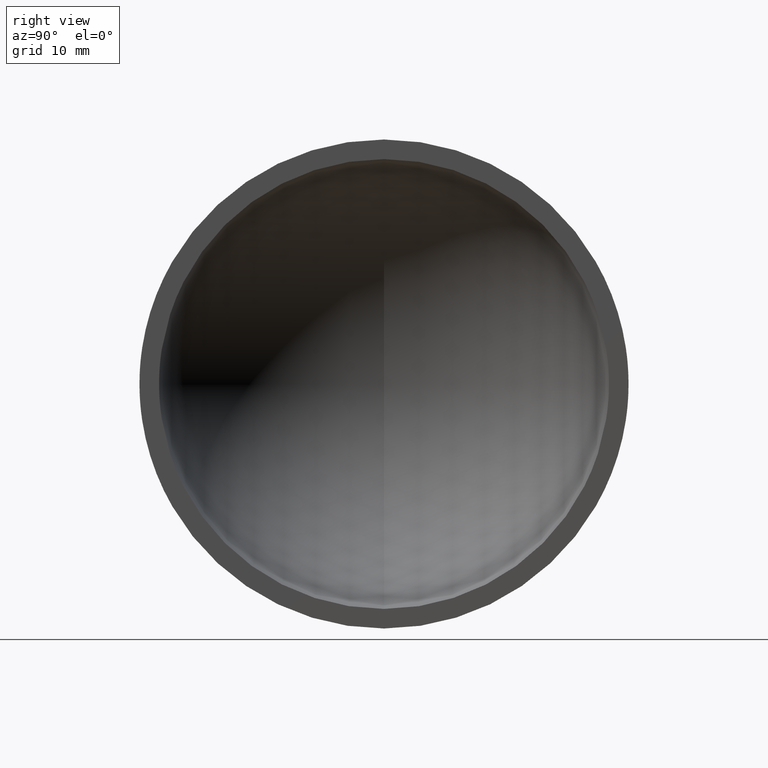
[diagram: clean part render]
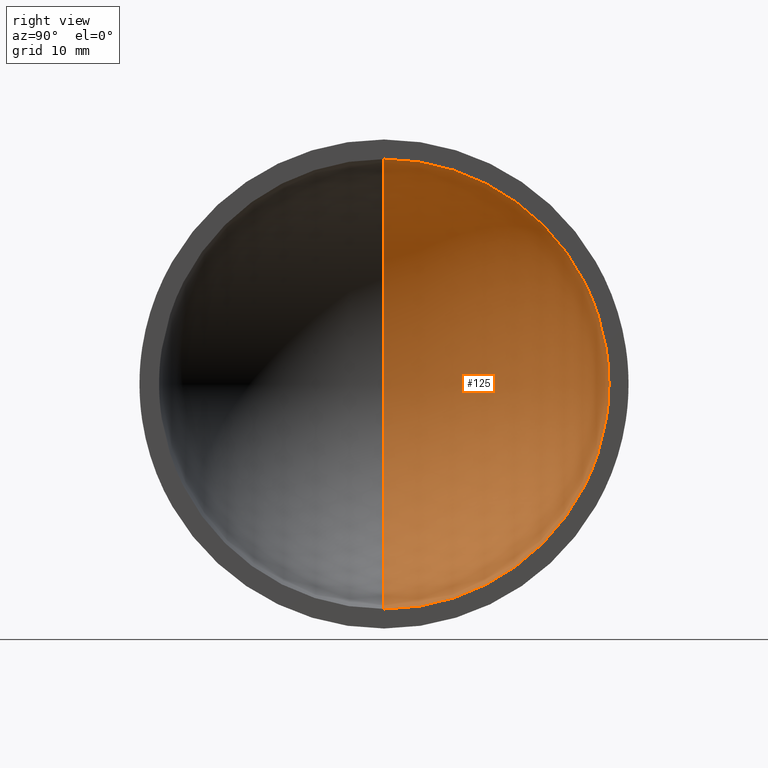
[diagram: same view with one face highlighted and labeled with its STEP entity id]
A machine part, right view. The second image highlights one B-rep face of the part: STEP entity #125.
In plain terms, the highlighted spherical surface has radius 34.5 mm.
Its self-contained STEP definition (entity closure, byte-faithful):
#6 = DIRECTION ( 'NONE',  ( 0.0000000000000000000, -1.000000000000000000, 1.224646799147353200E-016 ) ) ;
#8 = CARTESIAN_POINT ( 'NONE',  ( 0.0000000000000000000, 0.0000000000000000000, 0.0000000000000000000 ) ) ;
#13 = FACE_OUTER_BOUND ( 'NONE', #88, .T. ) ;
#20 = DIRECTION ( 'NONE',  ( 0.0000000000000000000, -1.224646799147353200E-016, -1.000000000000000000 ) ) ;
#29 = VERTEX_POINT ( 'NONE', #121 ) ;
#37 = DIRECTION ( 'NONE',  ( 0.0000000000000000000, 0.0000000000000000000, -1.000000000000000000 ) ) ;
#40 = EDGE_CURVE ( 'NONE', #29, #120, #137, .T. ) ;
#41 = ORIENTED_EDGE ( 'NONE', *, *, #40, .F. ) ;
#45 = AXIS2_PLACEMENT_3D ( 'NONE', #148, #49, #64 ) ;
#49 = DIRECTION ( 'NONE',  ( 0.0000000000000000000, -1.000000000000000000, 0.0000000000000000000 ) ) ;
#52 = DIRECTION ( 'NONE',  ( 0.0000000000000000000, 0.0000000000000000000, 1.000000000000000000 ) ) ;
#55 = VERTEX_POINT ( 'NONE', #157 ) ;
#58 = CIRCLE ( 'NONE', #66, 34.48550420104076200 ) ;
#64 = DIRECTION ( 'NONE',  ( 0.0000000000000000000, 0.0000000000000000000, 1.000000000000000000 ) ) ;
#66 = AXIS2_PLACEMENT_3D ( 'NONE', #139, #106, #37 ) ;
#76 = DIRECTION ( 'NONE',  ( 0.0000000000000000000, 1.000000000000000000, 0.0000000000000000000 ) ) ;
#88 = EDGE_LOOP ( 'NONE', ( #41, #147, #169 ) ) ;
#106 = DIRECTION ( 'NONE',  ( 1.000000000000000000, -0.0000000000000000000, -0.0000000000000000000 ) ) ;
#116 = AXIS2_PLACEMENT_3D ( 'NONE', #144, #76, #52 ) ;
#120 = VERTEX_POINT ( 'NONE', #168 ) ;
#121 = CARTESIAN_POINT ( 'NONE',  ( -34.49999999999999300, 0.0000000000000000000, 2.112515728529183700E-015 ) ) ;
#125 = ADVANCED_FACE ( 'NONE', ( #13 ), #155, .F. ) ;
#135 = AXIS2_PLACEMENT_3D ( 'NONE', #8, #6, #20 ) ;
#137 = CIRCLE ( 'NONE', #116, 34.49999999999999300 ) ;
#139 = CARTESIAN_POINT ( 'NONE',  ( -0.9999999999999945600, 0.0000000000000000000, 0.0000000000000000000 ) ) ;
#144 = CARTESIAN_POINT ( 'NONE',  ( 0.0000000000000000000, 0.0000000000000000000, 0.0000000000000000000 ) ) ;
#145 = EDGE_CURVE ( 'NONE', #29, #55, #146, .T. ) ;
#146 = CIRCLE ( 'NONE', #135, 34.49999999999999300 ) ;
#147 = ORIENTED_EDGE ( 'NONE', *, *, #145, .T. ) ;
#148 = CARTESIAN_POINT ( 'NONE',  ( 0.0000000000000000000, 0.0000000000000000000, 0.0000000000000000000 ) ) ;
#155 = SPHERICAL_SURFACE ( 'NONE', #45, 34.49999999999999300 ) ;
#157 = CARTESIAN_POINT ( 'NONE',  ( -0.9999999999999945600, -4.223256233678716200E-015, -34.48550420104076200 ) ) ;
#168 = CARTESIAN_POINT ( 'NONE',  ( -0.9999999999999945600, 0.0000000000000000000, 34.48550420104076200 ) ) ;
#169 = ORIENTED_EDGE ( 'NONE', *, *, #171, .T. ) ;
#171 = EDGE_CURVE ( 'NONE', #55, #120, #58, .T. ) ;